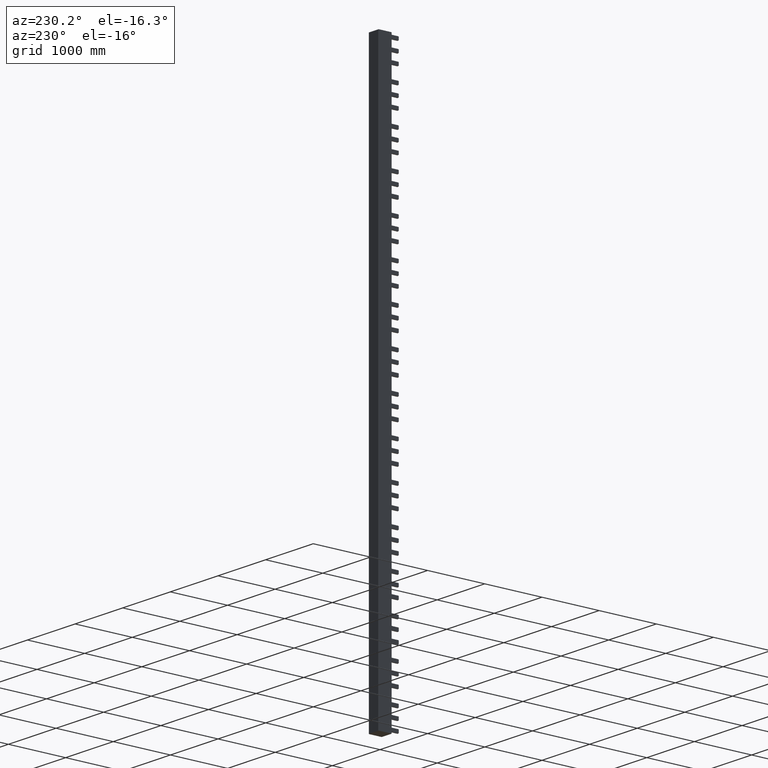
[diagram: clean part render]
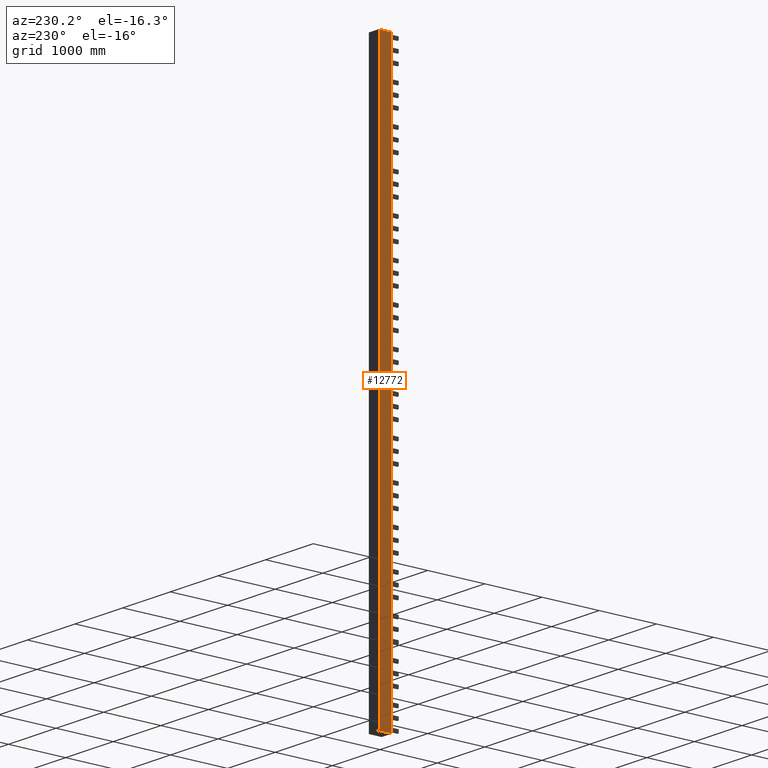
[diagram: same view with one face highlighted and labeled with its STEP entity id]
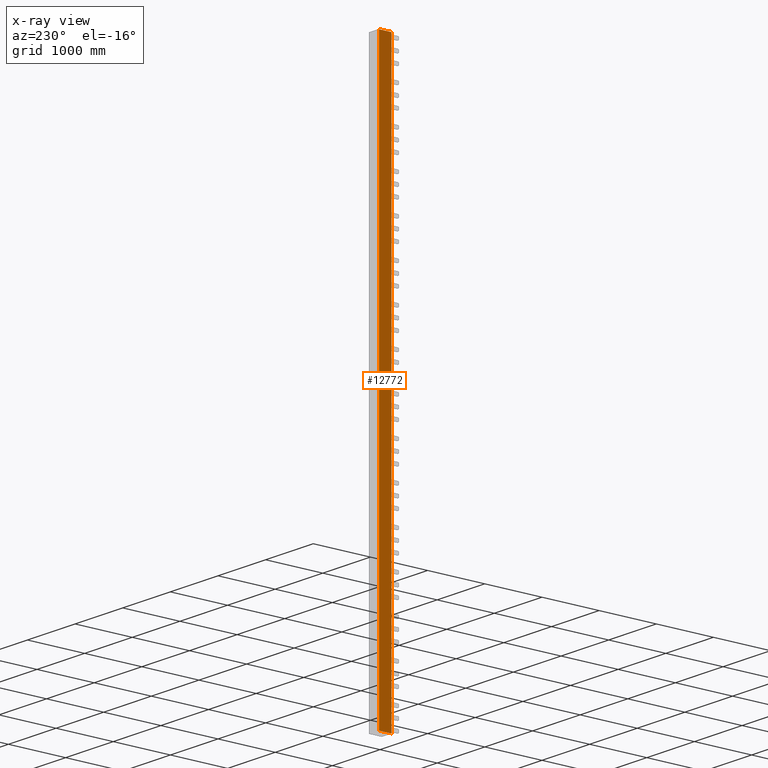
[diagram: x-ray of the same camera — body ghosted, the highlighted face saturated]
A machine part, auxiliary view. The second image highlights one B-rep face of the part: STEP entity #12772.
The next image is the same camera in x-ray: the body ghosted, the highlighted face saturated — about 0% of this face is hidden behind the body in this view.
In plain terms, the highlighted planar face has unit normal (-1, -0, 0).
Its self-contained STEP definition (entity closure, byte-faithful):
#12292=CARTESIAN_POINT('',(6698.0208871468094,6049.4066631202095,-10000.0));
#12293=VERTEX_POINT('',#12292);
#12301=CARTESIAN_POINT('',(6698.0208871467594,6266.4066631202095,-10000.0));
#12302=VERTEX_POINT('',#12301);
#12303=CARTESIAN_POINT('',(6698.0208871467594,6266.4066631202095,-10000.0));
#12304=DIRECTION('',(2.221347E-013,-1.0,0.0));
#12305=VECTOR('',#12304,216.99999999999909);
#12306=LINE('',#12303,#12305);
#12307=EDGE_CURVE('',#12302,#12293,#12306,.T.);
#12712=CARTESIAN_POINT('',(6698.0208871467594,6266.4066631202095,-180.0));
#12713=VERTEX_POINT('',#12712);
#12721=CARTESIAN_POINT('',(6698.0208871468058,6049.4066631202095,-180.0));
#12722=VERTEX_POINT('',#12721);
#12723=CARTESIAN_POINT('',(6698.0208871468094,6049.4066631202095,-180.0));
#12724=DIRECTION('',(-2.305171E-013,1.0,0.0));
#12725=VECTOR('',#12724,216.99999999999909);
#12726=LINE('',#12723,#12725);
#12727=EDGE_CURVE('',#12722,#12713,#12726,.T.);
#12745=CARTESIAN_POINT('',(6698.0208871468094,6049.4066631202095,-180.0));
#12746=DIRECTION('',(0.0,0.0,-1.0));
#12747=VECTOR('',#12746,9820.0);
#12748=LINE('',#12745,#12747);
#12749=EDGE_CURVE('',#12722,#12293,#12748,.T.);
#12756=CARTESIAN_POINT('',(6698.0208871467566,6276.4066631202131,0.0));
#12757=DIRECTION('',(-1.0,-2.224308E-013,0.0));
#12758=DIRECTION('',(0.0,0.0,1.0));
#12759=AXIS2_PLACEMENT_3D('',#12756,#12757,#12758);
#12760=PLANE('',#12759);
#12761=ORIENTED_EDGE('',*,*,#12727,.T.);
#12762=CARTESIAN_POINT('',(6698.0208871467594,6266.4066631202095,-10000.0));
#12763=DIRECTION('',(0.0,0.0,1.0));
#12764=VECTOR('',#12763,9820.0);
#12765=LINE('',#12762,#12764);
#12766=EDGE_CURVE('',#12302,#12713,#12765,.T.);
#12767=ORIENTED_EDGE('',*,*,#12766,.F.);
#12768=ORIENTED_EDGE('',*,*,#12307,.T.);
#12769=ORIENTED_EDGE('',*,*,#12749,.F.);
#12770=EDGE_LOOP('',(#12761,#12767,#12768,#12769));
#12771=FACE_OUTER_BOUND('',#12770,.T.);
#12772=ADVANCED_FACE('',(#12771),#12760,.T.);